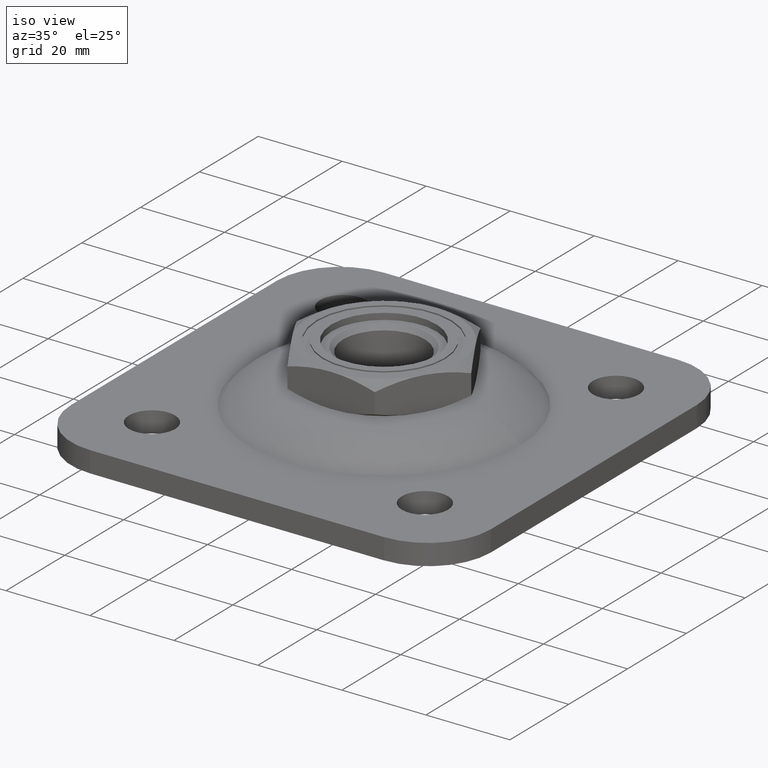
[diagram: clean part render]
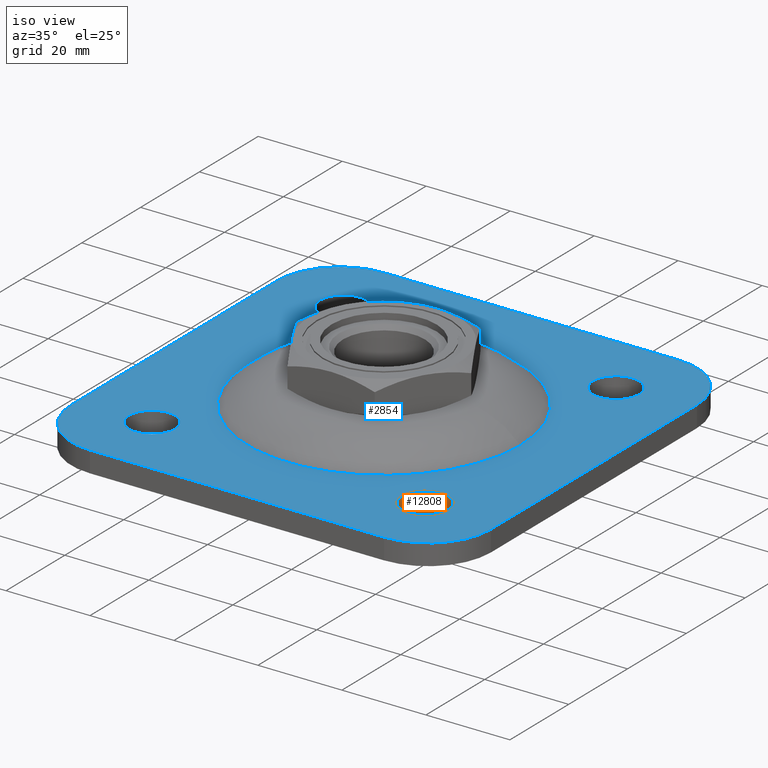
[diagram: same view with the hole feature highlighted: cylindrical wall and planar end face, labeled with their STEP entity ids]
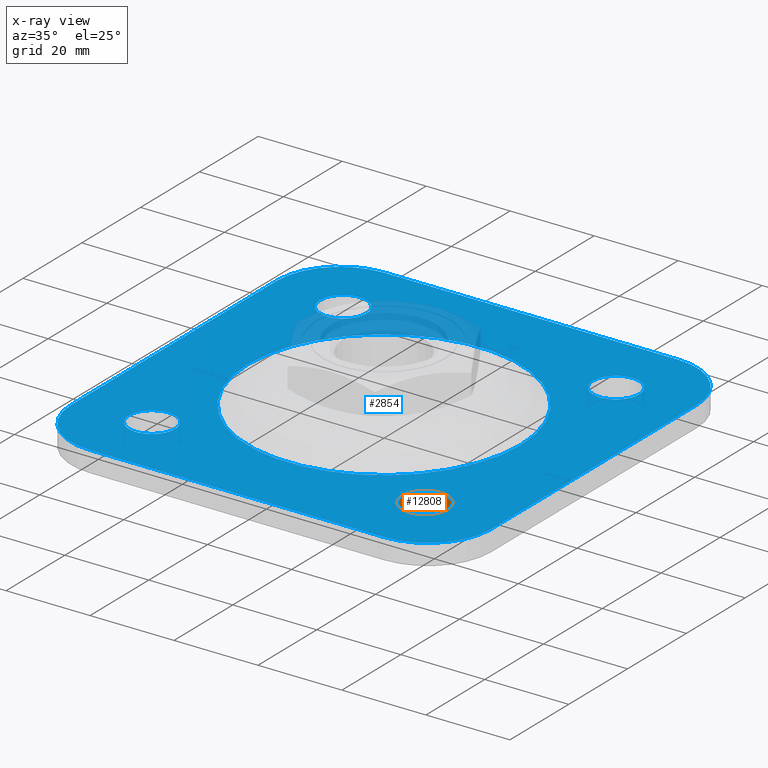
[diagram: x-ray of the same camera — body ghosted, the hole faces saturated]
A machine part, iso view. The highlighted faces form one hole feature of diameter 11 mm: the cylindrical wall (entity #12808, orange) and its adjacent planar end face (entity #2854, blue) — they share a circular edge in the B-rep.
The next image is the same camera in x-ray (body ghosted, the hole faces saturated) — the bore reads through the body.
Wall:
#1048 = DIRECTION ( 'NONE',  ( -0.000000000000000000, -0.000000000000000000, 1.000000000000000000 ) ) ;
#1539 = VERTEX_POINT ( 'NONE', #10805 ) ;
#2347 = CARTESIAN_POINT ( 'NONE',  ( 37.99999999999999289, -32.49999999999999289, 0.000000000000000000 ) ) ;
#3267 = CIRCLE ( 'NONE', #10267, 5.499999999999998224 ) ;
#3592 = EDGE_LOOP ( 'NONE', ( #7108 ) ) ;
#4385 = CARTESIAN_POINT ( 'NONE',  ( 32.49999999999999289, -32.49999999999999289, 5.000000000000000888 ) ) ;
#4793 = FACE_OUTER_BOUND ( 'NONE', #3592, .T. ) ;
#5208 = EDGE_LOOP ( 'NONE', ( #13495 ) ) ;
#5210 = DIRECTION ( 'NONE',  ( 1.000000000000000000, 0.000000000000000000, 0.000000000000000000 ) ) ;
#6653 = VERTEX_POINT ( 'NONE', #2347 ) ;
#7108 = ORIENTED_EDGE ( 'NONE', *, *, #12658, .F. ) ;
#7801 = FACE_OUTER_BOUND ( 'NONE', #5208, .T. ) ;
#8427 = DIRECTION ( 'NONE',  ( 1.000000000000000000, 0.000000000000000000, 0.000000000000000000 ) ) ;
#9304 = DIRECTION ( 'NONE',  ( 0.000000000000000000, 0.000000000000000000, 1.000000000000000000 ) ) ;
#10267 = AXIS2_PLACEMENT_3D ( 'NONE', #13516, #11348, #5210 ) ;
#10805 = CARTESIAN_POINT ( 'NONE',  ( 37.99999999999999289, -32.49999999999999289, 5.000000000000000888 ) ) ;
#11155 = AXIS2_PLACEMENT_3D ( 'NONE', #15533, #1048, #8427 ) ;
#11348 = DIRECTION ( 'NONE',  ( 0.000000000000000000, 0.000000000000000000, 1.000000000000000000 ) ) ;
#11936 = CIRCLE ( 'NONE', #12292, 5.499999999999998224 ) ;
#12292 = AXIS2_PLACEMENT_3D ( 'NONE', #4385, #9304, #14170 ) ;
#12521 = CYLINDRICAL_SURFACE ( 'NONE', #11155, 5.499999999999998224 ) ;
#12658 = EDGE_CURVE ( 'NONE', #6653, #6653, #3267, .T. ) ;
#12808 = ADVANCED_FACE ( 'NONE', ( #4793, #7801 ), #12521, .F. ) ;
#13495 = ORIENTED_EDGE ( 'NONE', *, *, #14770, .T. ) ;
#13516 = CARTESIAN_POINT ( 'NONE',  ( 32.49999999999999289, -32.49999999999999289, 0.000000000000000000 ) ) ;
#14170 = DIRECTION ( 'NONE',  ( 1.000000000000000000, 0.000000000000000000, 0.000000000000000000 ) ) ;
#14770 = EDGE_CURVE ( 'NONE', #1539, #1539, #11936, .T. ) ;
#15533 = CARTESIAN_POINT ( 'NONE',  ( 32.49999999999999289, -32.49999999999999289, 0.000000000000000000 ) ) ;
End face:
#29 = VECTOR ( 'NONE', #15238, 1000.000000000000000 ) ;
#348 = CARTESIAN_POINT ( 'NONE',  ( -34.99999999999999289, 50.00000000000000000, 5.000000000000004441 ) ) ;
#421 = VECTOR ( 'NONE', #6517, 1000.000000000000000 ) ;
#461 = FACE_BOUND ( 'NONE', #10329, .T. ) ;
#478 = DIRECTION ( 'NONE',  ( -0.000000000000000000, -0.000000000000000000, 1.000000000000000000 ) ) ;
#557 = CARTESIAN_POINT ( 'NONE',  ( 50.00000000000000000, -35.00000000000000000, 5.000000000000004441 ) ) ;
#653 = DIRECTION ( 'NONE',  ( 1.000000000000000000, 0.000000000000000000, 0.000000000000000000 ) ) ;
#964 = LINE ( 'NONE', #15393, #29 ) ;
#1082 = ORIENTED_EDGE ( 'NONE', *, *, #10591, .T. ) ;
#1136 = ORIENTED_EDGE ( 'NONE', *, *, #3721, .T. ) ;
#1265 = AXIS2_PLACEMENT_3D ( 'NONE', #12471, #14945, #2801 ) ;
#1329 = EDGE_CURVE ( 'NONE', #3992, #3992, #8623, .T. ) ;
#1340 = AXIS2_PLACEMENT_3D ( 'NONE', #9195, #2010, #12864 ) ;
#1399 = ORIENTED_EDGE ( 'NONE', *, *, #14770, .F. ) ;
#1539 = VERTEX_POINT ( 'NONE', #10805 ) ;
#1743 = AXIS2_PLACEMENT_3D ( 'NONE', #7208, #11857, #7047 ) ;
#1783 = DIRECTION ( 'NONE',  ( 0.000000000000000000, 0.000000000000000000, -1.000000000000000000 ) ) ;
#1933 = EDGE_CURVE ( 'NONE', #9520, #6781, #6176, .T. ) ;
#2010 = DIRECTION ( 'NONE',  ( -0.000000000000000000, -0.000000000000000000, 1.000000000000000000 ) ) ;
#2060 = VERTEX_POINT ( 'NONE', #9400 ) ;
#2098 = VERTEX_POINT ( 'NONE', #7099 ) ;
#2167 = EDGE_CURVE ( 'NONE', #13238, #13238, #3694, .T. ) ;
#2247 = CARTESIAN_POINT ( 'NONE',  ( 32.50000000000000000, 0.000000000000000000, 5.000000000000002665 ) ) ;
#2730 = DIRECTION ( 'NONE',  ( -1.000000000000000000, 0.000000000000000000, 0.000000000000000000 ) ) ;
#2801 = DIRECTION ( 'NONE',  ( 1.000000000000000000, 0.000000000000000000, 0.000000000000000000 ) ) ;
#2854 = ADVANCED_FACE ( 'NONE', ( #14619, #9171, #14232, #461, #7637, #8406 ), #4302, .F. ) ;
#3059 = CARTESIAN_POINT ( 'NONE',  ( 0.000000000000000000, 50.00000000000000000, 5.000000000000004441 ) ) ;
#3350 = EDGE_CURVE ( 'NONE', #9520, #2060, #8781, .T. ) ;
#3377 = EDGE_LOOP ( 'NONE', ( #14090 ) ) ;
#3384 = ORIENTED_EDGE ( 'NONE', *, *, #1329, .F. ) ;
#3434 = EDGE_CURVE ( 'NONE', #6615, #8932, #9159, .T. ) ;
#3566 = CARTESIAN_POINT ( 'NONE',  ( -50.00000000000000711, -35.00000000000000000, 5.000000000000004441 ) ) ;
#3597 = CIRCLE ( 'NONE', #1743, 5.499999999999998224 ) ;
#3633 = DIRECTION ( 'NONE',  ( -0.000000000000000000, -0.000000000000000000, 1.000000000000000000 ) ) ;
#3694 = CIRCLE ( 'NONE', #11570, 5.499999999999994671 ) ;
#3721 = EDGE_CURVE ( 'NONE', #8932, #6790, #4233, .T. ) ;
#3852 = CIRCLE ( 'NONE', #7104, 15.00000000000000000 ) ;
#3992 = VERTEX_POINT ( 'NONE', #9588 ) ;
#3997 = CARTESIAN_POINT ( 'NONE',  ( 35.00000000000000000, -35.00000000000000000, 5.000000000000004441 ) ) ;
#4037 = AXIS2_PLACEMENT_3D ( 'NONE', #3997, #12500, #14919 ) ;
#4233 = LINE ( 'NONE', #12647, #8389 ) ;
#4260 = AXIS2_PLACEMENT_3D ( 'NONE', #6650, #1783, #13948 ) ;
#4302 = PLANE ( 'NONE',  #4260 ) ;
#4385 = CARTESIAN_POINT ( 'NONE',  ( 32.49999999999999289, -32.49999999999999289, 5.000000000000000888 ) ) ;
#5003 = CARTESIAN_POINT ( 'NONE',  ( 0.000000000000000000, 0.000000000000000000, 5.000000000000002665 ) ) ;
#5213 = CARTESIAN_POINT ( 'NONE',  ( 50.00000000000000000, 35.00000000000000000, 5.000000000000004441 ) ) ;
#5280 = CARTESIAN_POINT ( 'NONE',  ( -34.99999999999999289, 35.00000000000000000, 5.000000000000004441 ) ) ;
#5584 = ORIENTED_EDGE ( 'NONE', *, *, #9321, .F. ) ;
#5739 = CIRCLE ( 'NONE', #12954, 32.50000000000000000 ) ;
#5906 = AXIS2_PLACEMENT_3D ( 'NONE', #5280, #478, #2730 ) ;
#6176 = LINE ( 'NONE', #3059, #6558 ) ;
#6182 = EDGE_LOOP ( 'NONE', ( #14771, #1082, #14115, #13585, #7398, #10616, #1136, #9631 ) ) ;
#6517 = DIRECTION ( 'NONE',  ( 2.081668171172168760E-16, 1.000000000000000000, 0.000000000000000000 ) ) ;
#6549 = CARTESIAN_POINT ( 'NONE',  ( 35.00000000000000000, 35.00000000000000000, 5.000000000000004441 ) ) ;
#6558 = VECTOR ( 'NONE', #11787, 1000.000000000000000 ) ;
#6615 = VERTEX_POINT ( 'NONE', #3566 ) ;
#6650 = CARTESIAN_POINT ( 'NONE',  ( 0.000000000000000000, 32.50000000000000000, 5.000000000000000888 ) ) ;
#6679 = DIRECTION ( 'NONE',  ( 0.000000000000000000, 0.000000000000000000, 1.000000000000000000 ) ) ;
#6781 = VERTEX_POINT ( 'NONE', #12945 ) ;
#6790 = VERTEX_POINT ( 'NONE', #15531 ) ;
#7047 = DIRECTION ( 'NONE',  ( 1.000000000000000000, 0.000000000000000000, 0.000000000000000000 ) ) ;
#7099 = CARTESIAN_POINT ( 'NONE',  ( 37.99999999999999289, 32.50000000000001421, 5.000000000000000888 ) ) ;
#7104 = AXIS2_PLACEMENT_3D ( 'NONE', #6549, #12483, #13626 ) ;
#7208 = CARTESIAN_POINT ( 'NONE',  ( 32.49999999999999289, 32.50000000000001421, 5.000000000000000888 ) ) ;
#7398 = ORIENTED_EDGE ( 'NONE', *, *, #13337, .F. ) ;
#7637 = FACE_BOUND ( 'NONE', #3377, .T. ) ;
#7783 = EDGE_LOOP ( 'NONE', ( #3384 ) ) ;
#7798 = EDGE_CURVE ( 'NONE', #6790, #10426, #14527, .T. ) ;
#8389 = VECTOR ( 'NONE', #8806, 1000.000000000000000 ) ;
#8406 = FACE_OUTER_BOUND ( 'NONE', #6182, .T. ) ;
#8623 = CIRCLE ( 'NONE', #1265, 5.499999999999998224 ) ;
#8636 = DIRECTION ( 'NONE',  ( 1.000000000000000000, 0.000000000000000000, 0.000000000000000000 ) ) ;
#8781 = CIRCLE ( 'NONE', #5906, 15.00000000000000000 ) ;
#8806 = DIRECTION ( 'NONE',  ( 1.000000000000000000, 0.000000000000000000, 0.000000000000000000 ) ) ;
#8932 = VERTEX_POINT ( 'NONE', #12919 ) ;
#8935 = EDGE_CURVE ( 'NONE', #10426, #15038, #964, .T. ) ;
#9116 = CARTESIAN_POINT ( 'NONE',  ( -32.50000000000000711, 32.50000000000000711, 5.000000000000000888 ) ) ;
#9159 = CIRCLE ( 'NONE', #1340, 15.00000000000000000 ) ;
#9171 = FACE_BOUND ( 'NONE', #12178, .T. ) ;
#9195 = CARTESIAN_POINT ( 'NONE',  ( -35.00000000000000711, -35.00000000000000000, 5.000000000000004441 ) ) ;
#9304 = DIRECTION ( 'NONE',  ( 0.000000000000000000, 0.000000000000000000, 1.000000000000000000 ) ) ;
#9321 = EDGE_CURVE ( 'NONE', #2098, #2098, #3597, .T. ) ;
#9400 = CARTESIAN_POINT ( 'NONE',  ( -49.99999999999999289, 35.00000000000000000, 5.000000000000004441 ) ) ;
#9430 = CARTESIAN_POINT ( 'NONE',  ( -27.00000000000001421, 32.50000000000000711, 5.000000000000000888 ) ) ;
#9520 = VERTEX_POINT ( 'NONE', #348 ) ;
#9588 = CARTESIAN_POINT ( 'NONE',  ( -27.00000000000001066, -32.50000000000000711, 5.000000000000000888 ) ) ;
#9631 = ORIENTED_EDGE ( 'NONE', *, *, #7798, .T. ) ;
#10329 = EDGE_LOOP ( 'NONE', ( #1399 ) ) ;
#10426 = VERTEX_POINT ( 'NONE', #557 ) ;
#10591 = EDGE_CURVE ( 'NONE', #15038, #6781, #3852, .T. ) ;
#10616 = ORIENTED_EDGE ( 'NONE', *, *, #3434, .T. ) ;
#10805 = CARTESIAN_POINT ( 'NONE',  ( 37.99999999999999289, -32.49999999999999289, 5.000000000000000888 ) ) ;
#11570 = AXIS2_PLACEMENT_3D ( 'NONE', #9116, #6679, #653 ) ;
#11787 = DIRECTION ( 'NONE',  ( 1.000000000000000000, 0.000000000000000000, 0.000000000000000000 ) ) ;
#11857 = DIRECTION ( 'NONE',  ( 0.000000000000000000, 0.000000000000000000, 1.000000000000000000 ) ) ;
#11936 = CIRCLE ( 'NONE', #12292, 5.499999999999998224 ) ;
#11939 = VERTEX_POINT ( 'NONE', #2247 ) ;
#12148 = LINE ( 'NONE', #13698, #421 ) ;
#12178 = EDGE_LOOP ( 'NONE', ( #13710 ) ) ;
#12292 = AXIS2_PLACEMENT_3D ( 'NONE', #4385, #9304, #14170 ) ;
#12471 = CARTESIAN_POINT ( 'NONE',  ( -32.50000000000000711, -32.50000000000000711, 5.000000000000000888 ) ) ;
#12483 = DIRECTION ( 'NONE',  ( -0.000000000000000000, -0.000000000000000000, 1.000000000000000000 ) ) ;
#12500 = DIRECTION ( 'NONE',  ( -0.000000000000000000, -0.000000000000000000, 1.000000000000000000 ) ) ;
#12623 = EDGE_CURVE ( 'NONE', #11939, #11939, #5739, .T. ) ;
#12647 = CARTESIAN_POINT ( 'NONE',  ( 0.000000000000000000, -50.00000000000000000, 5.000000000000004441 ) ) ;
#12864 = DIRECTION ( 'NONE',  ( -1.000000000000000000, 0.000000000000000000, 0.000000000000000000 ) ) ;
#12919 = CARTESIAN_POINT ( 'NONE',  ( -35.00000000000000711, -50.00000000000000000, 5.000000000000004441 ) ) ;
#12945 = CARTESIAN_POINT ( 'NONE',  ( 35.00000000000000000, 50.00000000000000000, 5.000000000000004441 ) ) ;
#12954 = AXIS2_PLACEMENT_3D ( 'NONE', #5003, #3633, #8636 ) ;
#13238 = VERTEX_POINT ( 'NONE', #9430 ) ;
#13337 = EDGE_CURVE ( 'NONE', #6615, #2060, #12148, .T. ) ;
#13585 = ORIENTED_EDGE ( 'NONE', *, *, #3350, .T. ) ;
#13626 = DIRECTION ( 'NONE',  ( -1.000000000000000000, 0.000000000000000000, 0.000000000000000000 ) ) ;
#13698 = CARTESIAN_POINT ( 'NONE',  ( -50.00000000000000000, 1.040834085586084257E-14, 5.000000000000004441 ) ) ;
#13710 = ORIENTED_EDGE ( 'NONE', *, *, #2167, .F. ) ;
#13948 = DIRECTION ( 'NONE',  ( -1.000000000000000000, 0.000000000000000000, -0.000000000000000000 ) ) ;
#14090 = ORIENTED_EDGE ( 'NONE', *, *, #12623, .F. ) ;
#14115 = ORIENTED_EDGE ( 'NONE', *, *, #1933, .F. ) ;
#14170 = DIRECTION ( 'NONE',  ( 1.000000000000000000, 0.000000000000000000, 0.000000000000000000 ) ) ;
#14232 = FACE_BOUND ( 'NONE', #14411, .T. ) ;
#14411 = EDGE_LOOP ( 'NONE', ( #5584 ) ) ;
#14527 = CIRCLE ( 'NONE', #4037, 15.00000000000000000 ) ;
#14619 = FACE_BOUND ( 'NONE', #7783, .T. ) ;
#14770 = EDGE_CURVE ( 'NONE', #1539, #1539, #11936, .T. ) ;
#14771 = ORIENTED_EDGE ( 'NONE', *, *, #8935, .T. ) ;
#14919 = DIRECTION ( 'NONE',  ( -1.000000000000000000, 0.000000000000000000, 0.000000000000000000 ) ) ;
#14945 = DIRECTION ( 'NONE',  ( 0.000000000000000000, 0.000000000000000000, 1.000000000000000000 ) ) ;
#15038 = VERTEX_POINT ( 'NONE', #5213 ) ;
#15238 = DIRECTION ( 'NONE',  ( 6.938893903907228378E-17, 1.000000000000000000, 0.000000000000000000 ) ) ;
#15393 = CARTESIAN_POINT ( 'NONE',  ( 50.00000000000000000, -3.469446951953614189E-15, 5.000000000000004441 ) ) ;
#15531 = CARTESIAN_POINT ( 'NONE',  ( 35.00000000000000000, -50.00000000000000000, 5.000000000000004441 ) ) ;